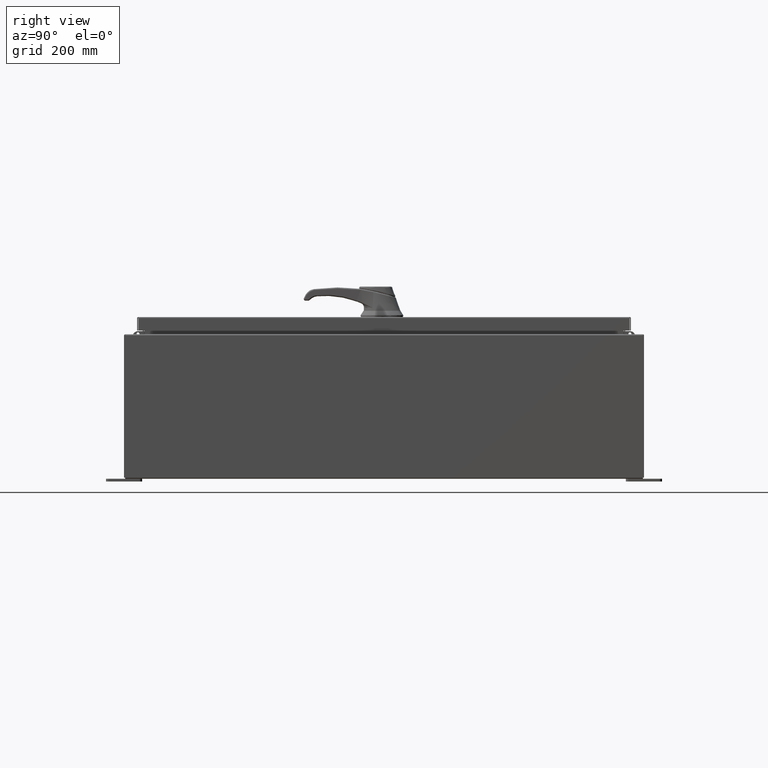
[diagram: clean part render]
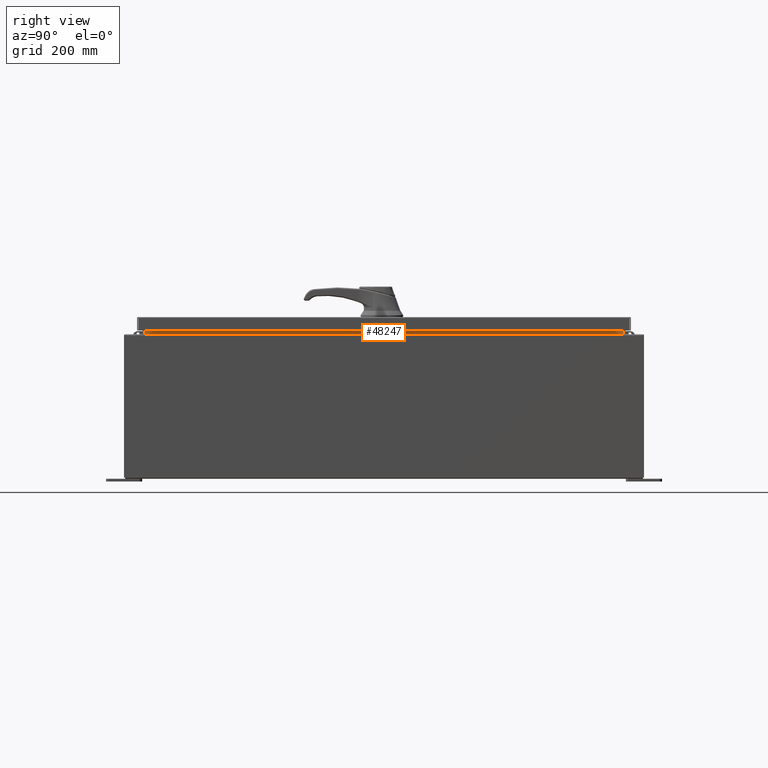
[diagram: same view with one face highlighted and labeled with its STEP entity id]
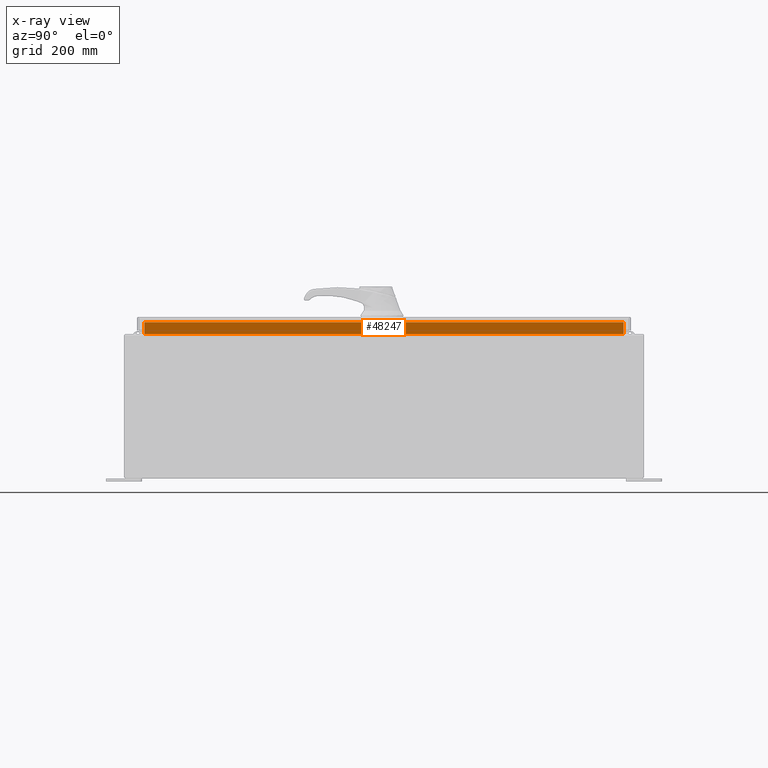
[diagram: x-ray of the same camera — body ghosted, the highlighted face saturated]
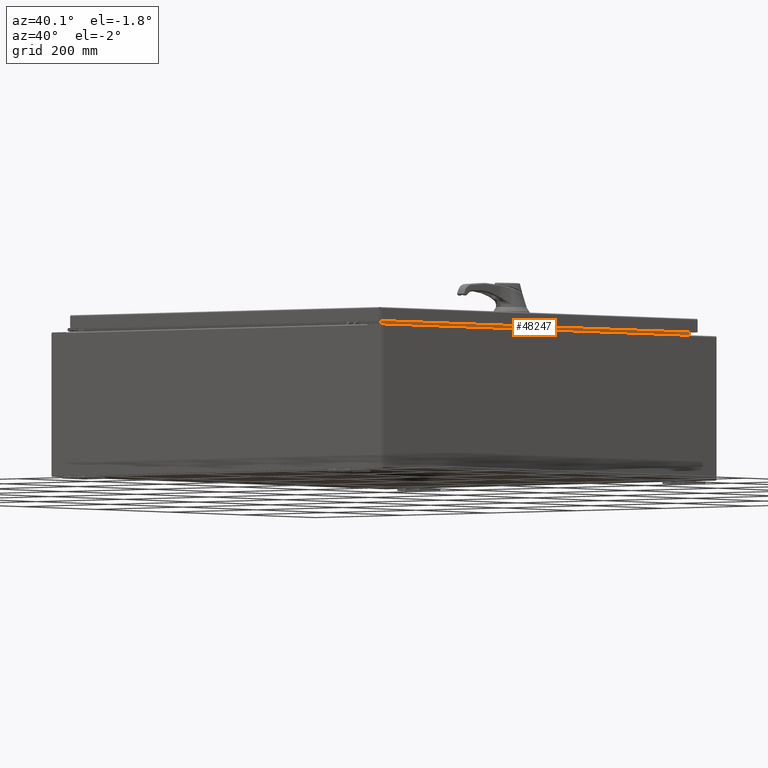
[diagram: same view with one face highlighted and labeled with its STEP entity id]
A machine part, right view. The second image highlights one B-rep face of the part: STEP entity #48247.
The next image is the same camera in x-ray: the body ghosted, the highlighted face saturated — about 0% of this face is hidden behind the body in this view.
A second angle (auxiliary view) of the same face is appended — the face is thin or edge-on in the first view.
In plain terms, the highlighted planar face has unit normal (1, 0, -0).
Its self-contained STEP definition (entity closure, byte-faithful):
#2181 = VERTEX_POINT ( 'NONE', #92294 ) ;
#9904 = ORIENTED_EDGE ( 'NONE', *, *, #21066, .F. ) ;
#10559 = EDGE_CURVE ( 'NONE', #109435, #42706, #110707, .T. ) ;
#13470 = ORIENTED_EDGE ( 'NONE', *, *, #100178, .F. ) ;
#14371 = PLANE ( 'NONE',  #34728 ) ;
#17304 = DIRECTION ( 'NONE',  ( 0.0000000000000000000, 1.000000000000000000, 0.0000000000000000000 ) ) ;
#21066 = EDGE_CURVE ( 'NONE', #42706, #2181, #70627, .T. ) ;
#26463 = ORIENTED_EDGE ( 'NONE', *, *, #10559, .F. ) ;
#33397 = DIRECTION ( 'NONE',  ( -2.361913319930193300E-015, 0.0000000000000000000, -1.000000000000000000 ) ) ;
#34728 = AXIS2_PLACEMENT_3D ( 'NONE', #80684, #90220, #33397 ) ;
#42153 = VECTOR ( 'NONE', #117104, 39.37007874015748100 ) ;
#42706 = VERTEX_POINT ( 'NONE', #101363 ) ;
#45085 = LINE ( 'NONE', #88384, #42153 ) ;
#48247 = ADVANCED_FACE ( 'NONE', ( #80320 ), #14371, .T. ) ;
#55828 = VECTOR ( 'NONE', #71127, 39.37007874015748100 ) ;
#57216 = VECTOR ( 'NONE', #17304, 39.37007874015748100 ) ;
#59123 = CARTESIAN_POINT ( 'NONE',  ( 13.69970000000003400, 16.59375000000000000, 9.925300000000008900 ) ) ;
#61577 = CARTESIAN_POINT ( 'NONE',  ( 13.69970000000003600, 16.59375000000000000, 9.938300000000008800 ) ) ;
#70627 = LINE ( 'NONE', #59123, #73565 ) ;
#71127 = DIRECTION ( 'NONE',  ( 6.585245634444928200E-017, -1.000000000000000000, 1.317049126888985600E-016 ) ) ;
#73565 = VECTOR ( 'NONE', #116026, 39.37007874015748100 ) ;
#80320 = FACE_OUTER_BOUND ( 'NONE', #106142, .T. ) ;
#80684 = CARTESIAN_POINT ( 'NONE',  ( 13.69970000000001100, 0.0000000000000000000, -3.235750390904769000E-014 ) ) ;
#81497 = ORIENTED_EDGE ( 'NONE', *, *, #108687, .F. ) ;
#82757 = CARTESIAN_POINT ( 'NONE',  ( 13.69970000000003400, -16.59375000000000000, 9.938300000000010600 ) ) ;
#83602 = CARTESIAN_POINT ( 'NONE',  ( 13.69970000000003400, -16.59375000000000000, 10.76290000000001100 ) ) ;
#88384 = CARTESIAN_POINT ( 'NONE',  ( 13.69970000000003600, -16.59375000000000000, 10.85060000000001100 ) ) ;
#90220 = DIRECTION ( 'NONE',  ( 1.000000000000000000, 0.0000000000000000000, -2.361913319930193300E-015 ) ) ;
#92294 = CARTESIAN_POINT ( 'NONE',  ( 13.69970000000003400, 16.59375000000000000, 9.938300000000010600 ) ) ;
#96309 = VERTEX_POINT ( 'NONE', #82757 ) ;
#100178 = EDGE_CURVE ( 'NONE', #2181, #96309, #106346, .T. ) ;
#101363 = CARTESIAN_POINT ( 'NONE',  ( 13.69970000000003400, 16.59375000000000000, 10.76290000000001100 ) ) ;
#106142 = EDGE_LOOP ( 'NONE', ( #9904, #26463, #81497, #13470 ) ) ;
#106346 = LINE ( 'NONE', #61577, #55828 ) ;
#108687 = EDGE_CURVE ( 'NONE', #96309, #109435, #45085, .T. ) ;
#109435 = VERTEX_POINT ( 'NONE', #117721 ) ;
#110707 = LINE ( 'NONE', #83602, #57216 ) ;
#116026 = DIRECTION ( 'NONE',  ( -2.361913319930193300E-015, -0.0000000000000000000, -1.000000000000000000 ) ) ;
#117104 = DIRECTION ( 'NONE',  ( 2.361913319930198800E-015, -0.0000000000000000000, 1.000000000000000000 ) ) ;
#117721 = CARTESIAN_POINT ( 'NONE',  ( 13.69970000000003600, -16.59375000000000000, 10.76290000000001100 ) ) ;